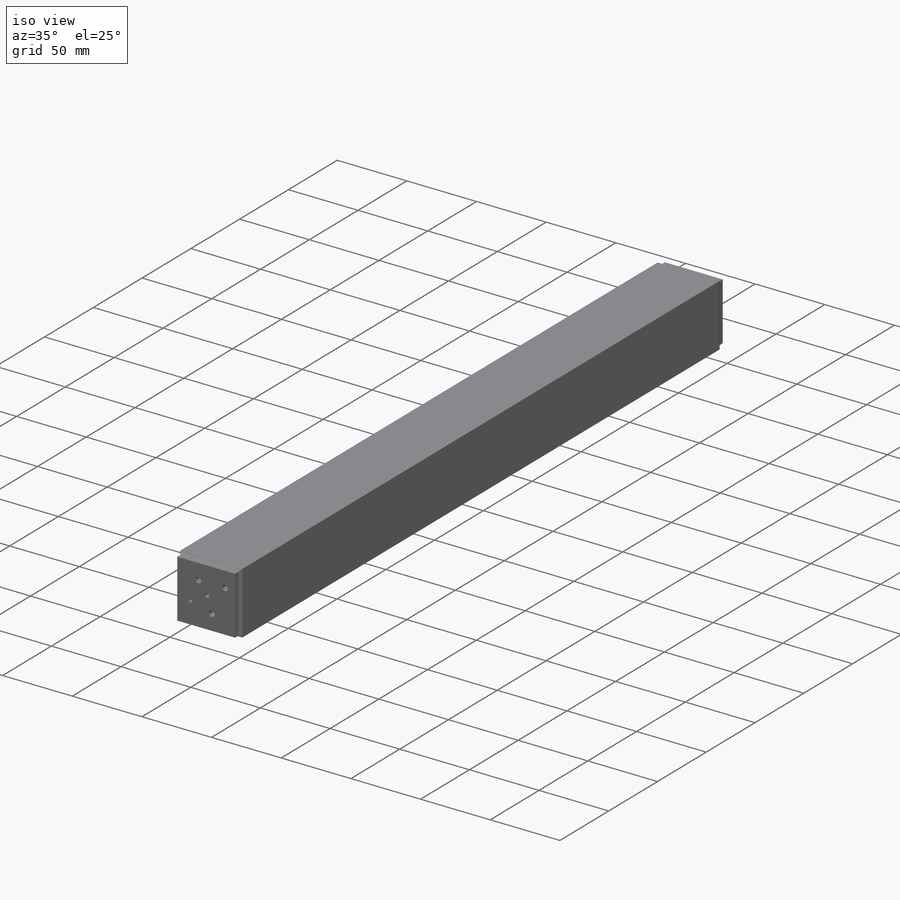
[diagram: iso view]
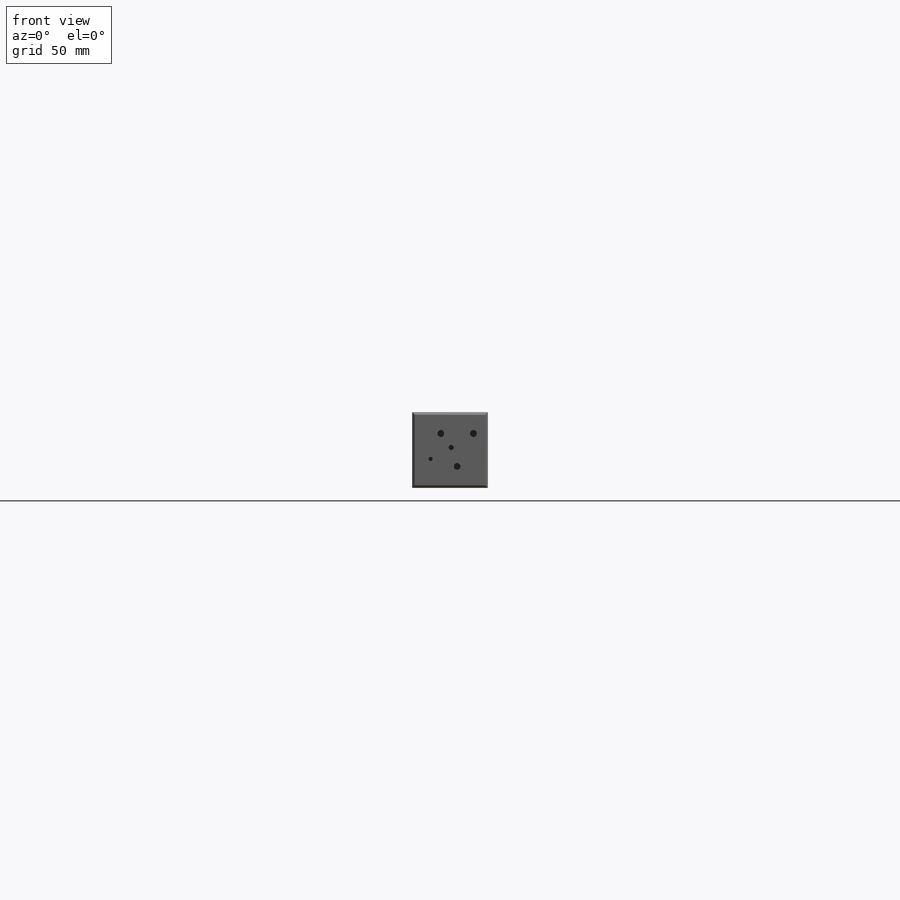
[diagram: front view]
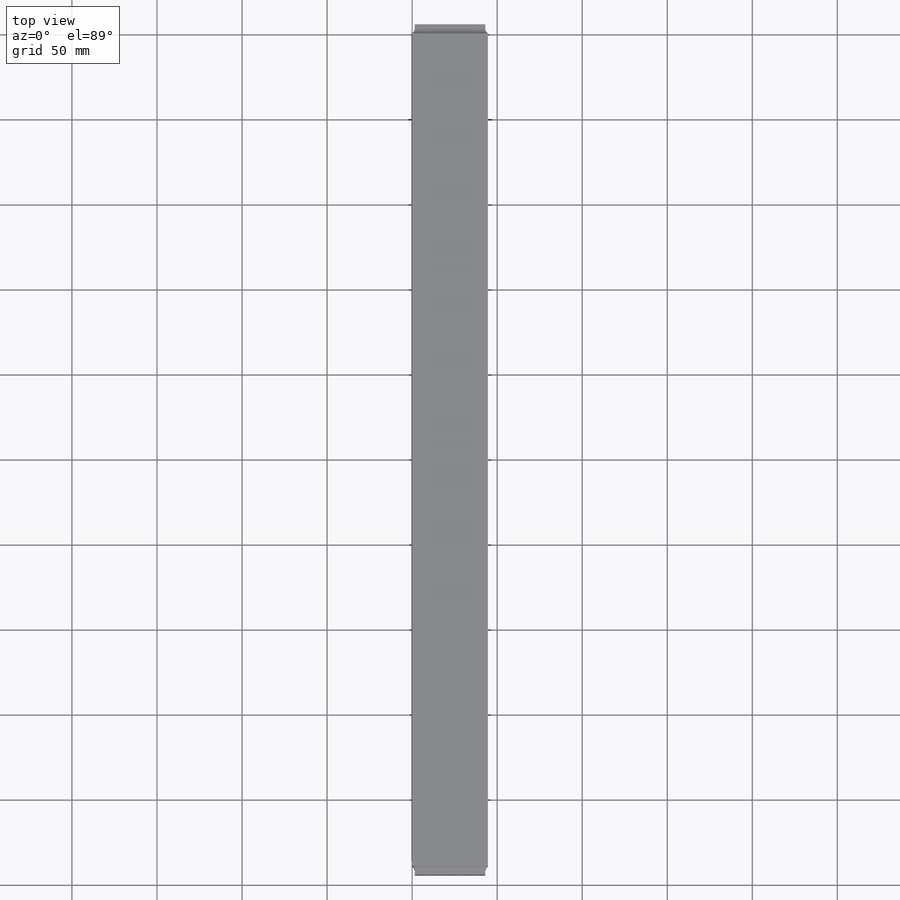
[diagram: top view]
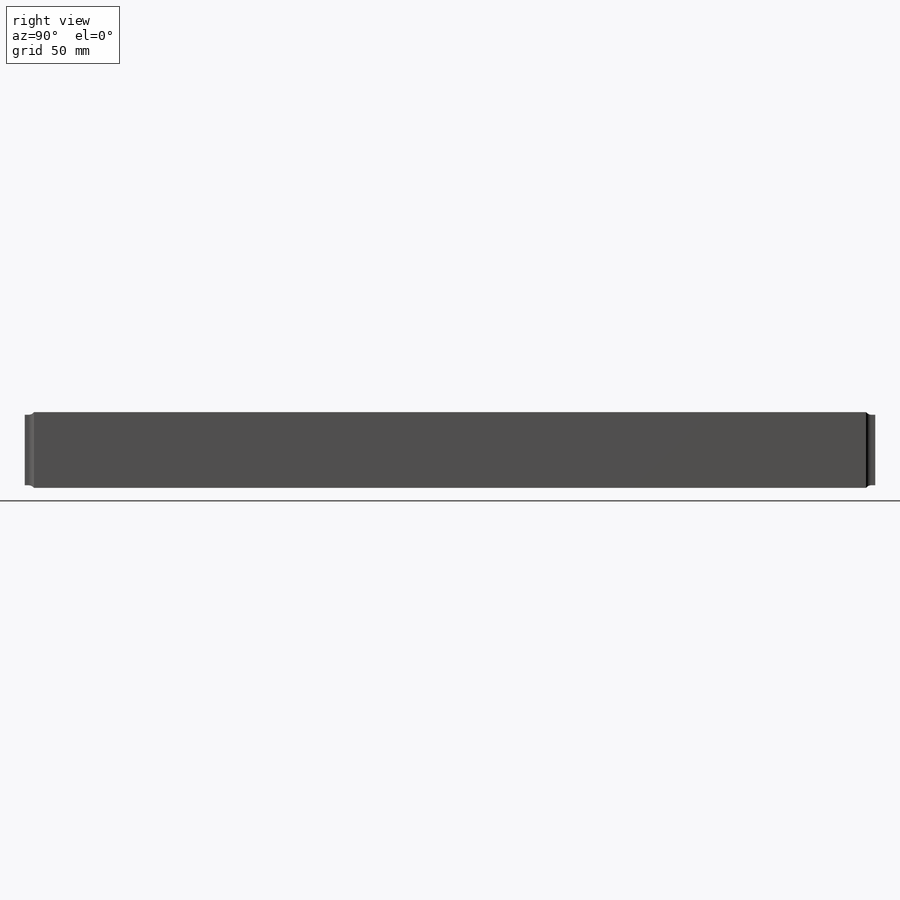
[diagram: right view]
SOLIDWORKS PART (.sldprt)
format: sldprt  version: not decoded by parser v0  size: 244,224 bytes
history: native  units: mm
features: sketch x3, extrude x3, material x1, fillet x1 (+16 scaffold rows collapsed)
feature tree (24):
  scaffold x16  (default folders/planes/origin — collapsed)
  material  "1060 Alloy"
  sketch  "Sketch1"  dims[D2=4.0mm D1=44.53mm D3=41.43mm D4=10.9mm D5=10.6mm D6=~54.692014mm]
  extrude  "Boss-Extrude1"  Depth=5.42mm
  sketch  "Sketch2"  dims[D1=3.175mm]
  extrude  "Boss-Extrude2"  Depth=489.16mm
  sketch  "Sketch3"  dims[D1=3.01mm D2=2.4mm]
  extrude  "Boss-Extrude3"  Depth=5.42mm
  fillet  "Fillet1"  Radius=4mm
decode coverage: 7 of 7 modeling features carry decoded parameters
note: ~ marks probable driven/reference dimensions
note: suppression state not decoded; provenance and decode notes live in map.json
